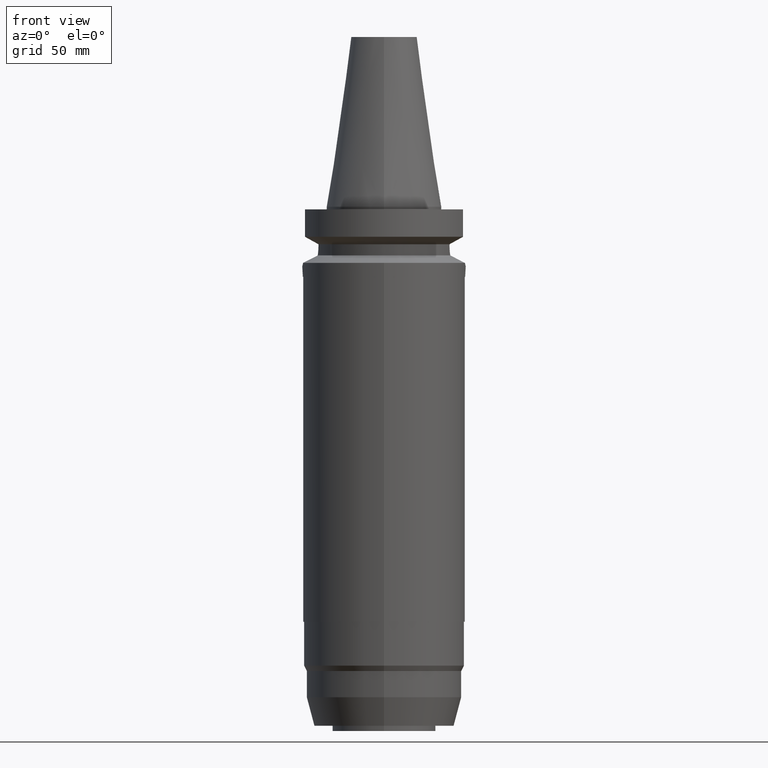
[diagram: clean part render]
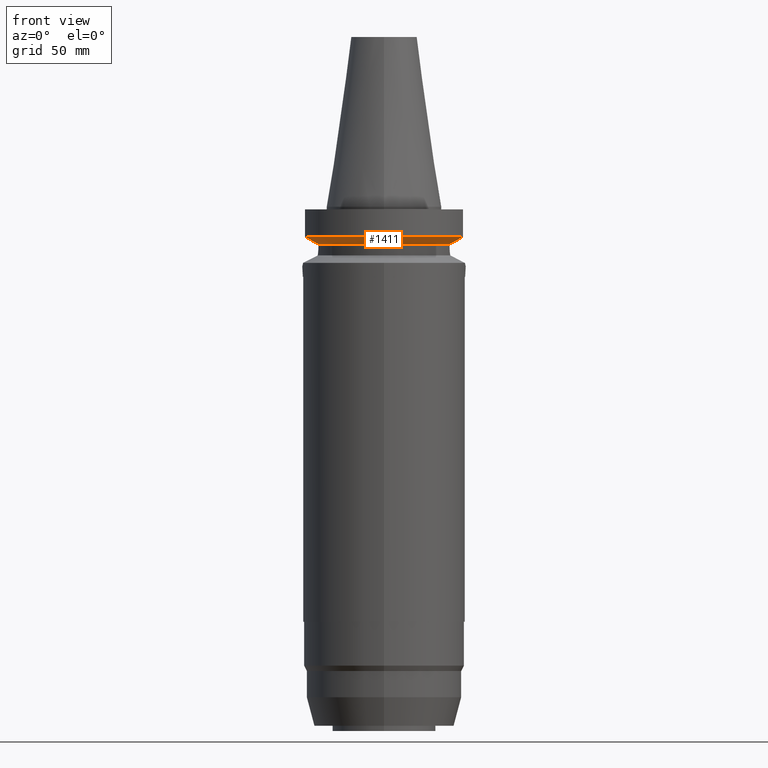
[diagram: same view with one face highlighted and labeled with its STEP entity id]
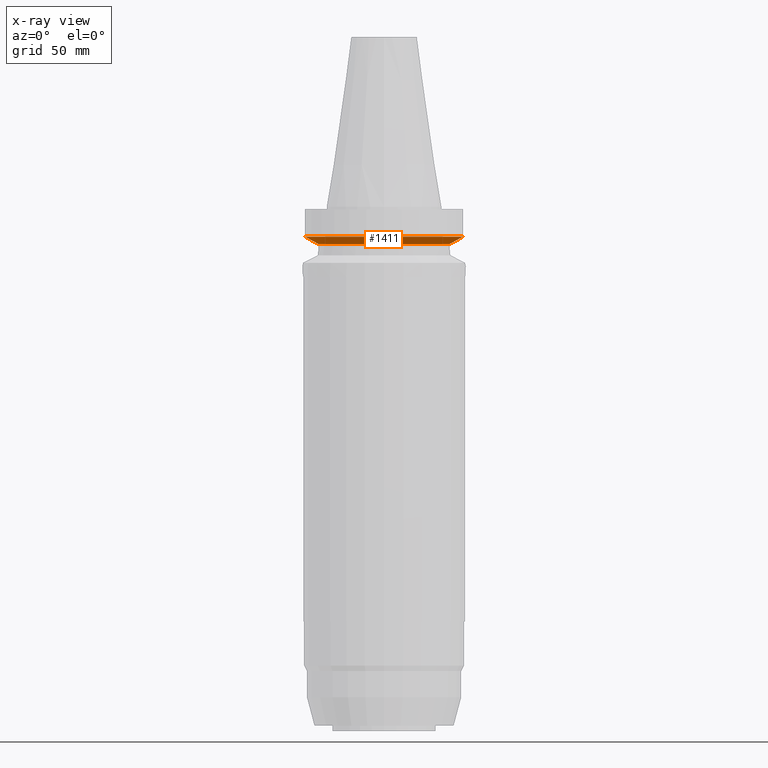
[diagram: x-ray of the same camera — body ghosted, the highlighted face saturated]
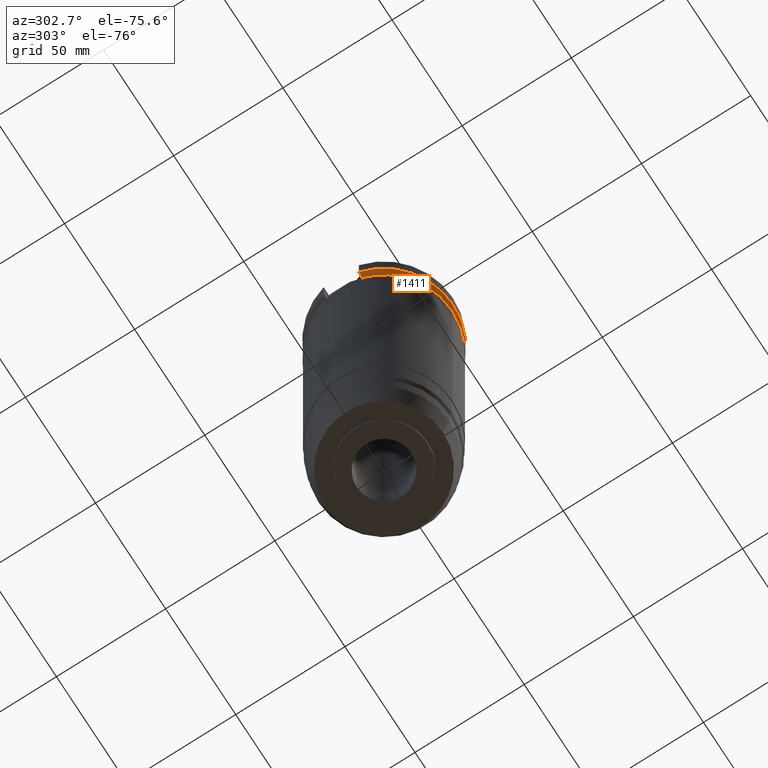
[diagram: same view with one face highlighted and labeled with its STEP entity id]
A machine part, front view. The second image highlights one B-rep face of the part: STEP entity #1411.
The next image is the same camera in x-ray: the body ghosted, the highlighted face saturated — about 0% of this face is hidden behind the body in this view.
A second angle (auxiliary view) of the same face is appended — the face is thin or edge-on in the first view.
In plain terms, the highlighted conical surface has half-angle 60 deg.
Its self-contained STEP definition (entity closure, byte-faithful):
#207=CARTESIAN_POINT('',(-3.045402195395E1,-8.050002908600E0,
-1.156547945423E1));
#208=CARTESIAN_POINT('',(-2.987643581968E1,-8.050002908600E0,
-1.188787587546E1));
#209=CARTESIAN_POINT('',(-2.872094914504E1,-8.049998300893E0,
-1.253199804141E1));
#210=CARTESIAN_POINT('',(-2.698543427661E1,-8.050001583975E0,
-1.349412796673E1));
#211=CARTESIAN_POINT('',(-2.582729494261E1,-8.049997436797E0,
-1.413347333441E1));
#212=CARTESIAN_POINT('',(-2.524772348683E1,-8.049997436797E0,
-1.445227658437E1));
#251=CARTESIAN_POINT('',(0.E0,1.065333950388E-14,-1.156550565267E1));
#252=DIRECTION('',(0.E0,0.E0,1.E0));
#253=DIRECTION('',(-9.667943721520E-1,-2.555555555555E-1,0.E0));
#254=AXIS2_PLACEMENT_3D('',#251,#252,#253);
#259=CARTESIAN_POINT('',(0.E0,1.065333950388E-14,-1.156550565267E1));
#260=DIRECTION('',(0.E0,0.E0,1.E0));
#261=DIRECTION('',(0.E0,-1.E0,0.E0));
#262=AXIS2_PLACEMENT_3D('',#259,#260,#261);
#267=CARTESIAN_POINT('',(0.E0,1.065333950388E-14,-1.445225699861E1));
#268=DIRECTION('',(0.E0,0.E0,-1.E0));
#269=DIRECTION('',(9.527442516822E-1,-3.037735849057E-1,0.E0));
#270=AXIS2_PLACEMENT_3D('',#267,#268,#269);
#275=CARTESIAN_POINT('',(0.E0,1.065333950388E-14,-1.445225699861E1));
#276=DIRECTION('',(0.E0,0.E0,-1.E0));
#277=DIRECTION('',(0.E0,-1.E0,0.E0));
#278=AXIS2_PLACEMENT_3D('',#275,#276,#277);
#297=CARTESIAN_POINT('',(2.524772216353E1,-8.050001587143E0,-1.445224487144E1));
#298=CARTESIAN_POINT('',(2.582727361197E1,-8.050001587143E0,-1.413345267699E1));
#299=CARTESIAN_POINT('',(2.698547396648E1,-8.049999811802E0,-1.349419208993E1));
#300=CARTESIAN_POINT('',(2.872100165134E1,-8.049998277979E0,-1.253209187398E1));
#301=CARTESIAN_POINT('',(2.987642831141E1,-8.050004143513E0,-1.188786874928E1));
#302=CARTESIAN_POINT('',(3.045402162752E1,-8.050004143513E0,-1.156546832966E1));
#1181=CARTESIAN_POINT('',(-2.524772348683E1,-8.049997436797E0,
-1.445227658437E1));
#1182=VERTEX_POINT('',#1181);
#1183=CARTESIAN_POINT('',(2.524772266958E1,-8.05E0,-1.445225699861E1));
#1184=CARTESIAN_POINT('',(0.E0,-2.65E1,-1.445225699861E1));
#1185=VERTEX_POINT('',#1183);
#1186=VERTEX_POINT('',#1184);
#1197=CARTESIAN_POINT('',(-3.045402195395E1,-8.050002908600E0,
-1.156547945423E1));
#1198=VERTEX_POINT('',#1197);
#1224=CARTESIAN_POINT('',(0.E0,-3.15E1,-1.156550565267E1));
#1225=CARTESIAN_POINT('',(3.045402272279E1,-8.049999999999E0,
-1.156550565267E1));
#1226=VERTEX_POINT('',#1224);
#1227=VERTEX_POINT('',#1225);
#1395=CARTESIAN_POINT('',(0.E0,1.065333950388E-14,-1.300888132564E1));
#1396=DIRECTION('',(0.E0,0.E0,1.E0));
#1397=DIRECTION('',(0.E0,1.E0,0.E0));
#1398=AXIS2_PLACEMENT_3D('',#1395,#1396,#1397);
#1399=CONICAL_SURFACE('',#1398,2.9E1,6.E1);
#1400=ORIENTED_EDGE('',*,*,#1367,.F.);
#1402=ORIENTED_EDGE('',*,*,#1401,.T.);
#1404=ORIENTED_EDGE('',*,*,#1403,.T.);
#1406=ORIENTED_EDGE('',*,*,#1405,.F.);
#1407=ORIENTED_EDGE('',*,*,#1380,.T.);
#1408=ORIENTED_EDGE('',*,*,#1378,.T.);
#1409=EDGE_LOOP('',(#1400,#1402,#1404,#1406,#1407,#1408));
#1410=FACE_OUTER_BOUND('',#1409,.F.);
#213=B_SPLINE_CURVE_WITH_KNOTS('',3,(#207,#208,#209,#210,#211,#212),
.UNSPECIFIED.,.F.,.F.,(4,1,1,4),(0.E0,3.333333333333E-1,6.666666666667E-1,1.E0),
.UNSPECIFIED.);
#255=CIRCLE('',#254,3.15E1);
#263=CIRCLE('',#262,3.15E1);
#271=CIRCLE('',#270,2.65E1);
#279=CIRCLE('',#278,2.65E1);
#303=B_SPLINE_CURVE_WITH_KNOTS('',3,(#297,#298,#299,#300,#301,#302),
.UNSPECIFIED.,.F.,.F.,(4,1,1,4),(0.E0,3.333333333333E-1,6.666666666667E-1,1.E0),
.UNSPECIFIED.);
#1367=EDGE_CURVE('',#1198,#1182,#213,.T.);
#1378=EDGE_CURVE('',#1186,#1182,#279,.T.);
#1380=EDGE_CURVE('',#1185,#1186,#271,.T.);
#1401=EDGE_CURVE('',#1198,#1226,#255,.T.);
#1403=EDGE_CURVE('',#1226,#1227,#263,.T.);
#1405=EDGE_CURVE('',#1185,#1227,#303,.T.);
#1411=ADVANCED_FACE('',(#1410),#1399,.T.);